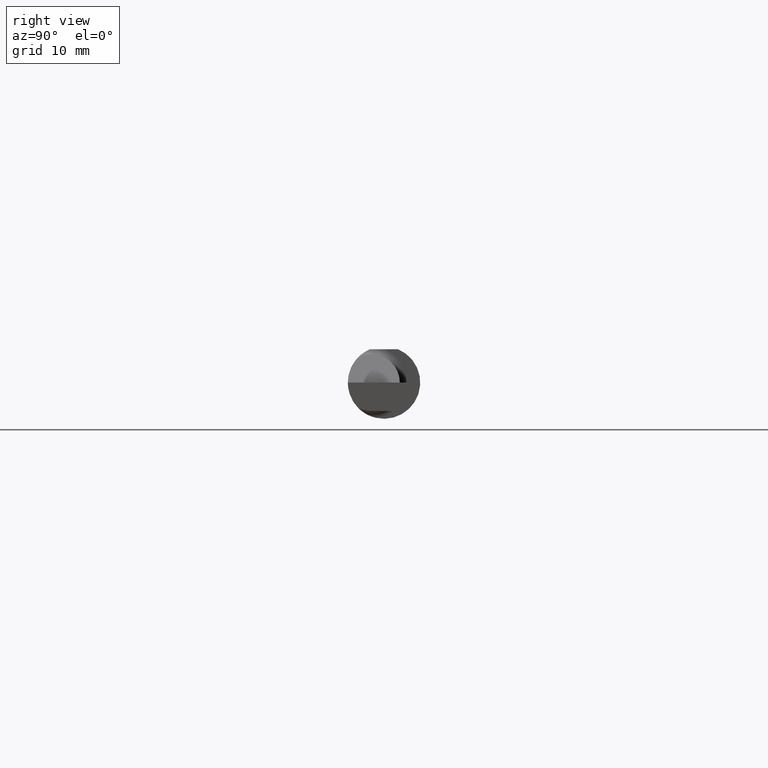
[diagram: clean part render]
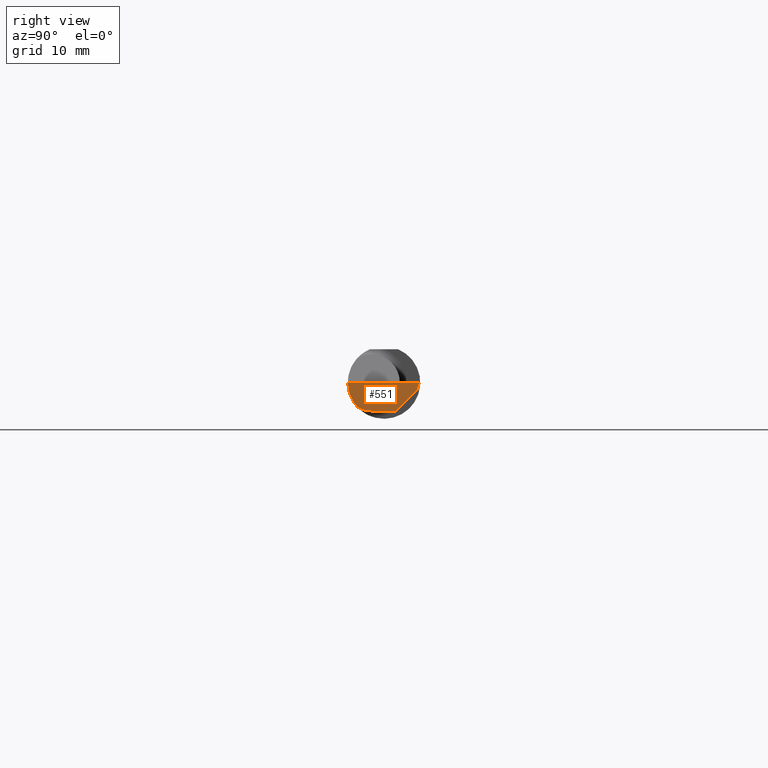
[diagram: same view with one face highlighted and labeled with its STEP entity id]
A machine part, right view. The second image highlights one B-rep face of the part: STEP entity #551.
In plain terms, the highlighted planar face has unit normal (-0.9995, 0.0174, 0.0262).
Its self-contained STEP definition (entity closure, byte-faithful):
#14 = PLANE ( 'NONE',  #281 ) ;
#39 = EDGE_CURVE ( 'NONE', #260, #57, #435, .T. ) ;
#51 = VERTEX_POINT ( 'NONE', #425 ) ;
#56 = CARTESIAN_POINT ( 'NONE',  ( 2.494835769263151537, -0.1248351010429638308, -0.03262966116142157480 ) ) ;
#57 = VERTEX_POINT ( 'NONE', #368 ) ;
#59 = CARTESIAN_POINT ( 'NONE',  ( 2.494033449660867152, -0.09015216647662482874, -0.08637192471845768493 ) ) ;
#60 = VERTEX_POINT ( 'NONE', #610 ) ;
#63 = CARTESIAN_POINT ( 'NONE',  ( 2.493072779947982820, -0.1248043149033065402, -0.09996577117162359916 ) ) ;
#72 = EDGE_CURVE ( 'NONE', #60, #57, #118, .T. ) ;
#94 = DIRECTION ( 'NONE',  ( 0.01744642479411464761, 0.9998477995484629233, -2.135106780035675284E-18 ) ) ;
#118 = LINE ( 'NONE', #656, #139 ) ;
#139 = VECTOR ( 'NONE', #726, 39.37007874015748854 ) ;
#175 = VERTEX_POINT ( 'NONE', #211 ) ;
#183 = DIRECTION ( 'NONE',  ( 0.02618093032612054533, 0.000000000000000000, 0.9996572206948034500 ) ) ;
#211 = CARTESIAN_POINT ( 'NONE',  ( 2.500000000000000444, 0.1221499999999999808, 1.947508823608312588E-17 ) ) ;
#232 = VECTOR ( 'NONE', #283, 39.37007874015748854 ) ;
#245 = EDGE_LOOP ( 'NONE', ( #777, #335, #576, #703, #404, #378, #528 ) ) ;
#260 = VERTEX_POINT ( 'NONE', #680 ) ;
#281 = AXIS2_PLACEMENT_3D ( 'NONE', #496, #732, #183 ) ;
#283 = DIRECTION ( 'NONE',  ( -0.03084274406794521375, -0.7067703747110382073, -0.7067703747110356538 ) ) ;
#335 = ORIENTED_EDGE ( 'NONE', *, *, #72, .F. ) ;
#337 = LINE ( 'NONE', #767, #232 ) ;
#341 = DIRECTION ( 'NONE',  ( -0.03042981077198583101, -0.3254173858243484818, -0.9450807116958995779 ) ) ;
#368 = CARTESIAN_POINT ( 'NONE',  ( 2.494536841675280670, -0.04385000000000003478, -0.09799999999999998990 ) ) ;
#378 = ORIENTED_EDGE ( 'NONE', *, *, #465, .F. ) ;
#379 = CARTESIAN_POINT ( 'NONE',  ( 2.495690077103728921, -0.1248499999950965084, 1.733801157256528502E-17 ) ) ;
#389 = VERTEX_POINT ( 'NONE', #408 ) ;
#402 = EDGE_CURVE ( 'NONE', #652, #175, #664, .T. ) ;
#404 = ORIENTED_EDGE ( 'NONE', *, *, #402, .F. ) ;
#408 = CARTESIAN_POINT ( 'NONE',  ( 2.495688583004118666, -0.1248499869621840785, -5.705736120969982501E-05 ) ) ;
#418 = CARTESIAN_POINT ( 'NONE',  ( 2.494536841675280670, -0.04385000000000003478, -0.09799999999999998990 ) ) ;
#425 = CARTESIAN_POINT ( 'NONE',  ( 2.499227245409318954, 0.1138861372810479888, -0.02400000000000000050 ) ) ;
#435 =( BOUNDED_CURVE ( )  B_SPLINE_CURVE ( 3, ( #778, #677, #484, #418 ),
 .UNSPECIFIED., .F., .T. ) 
 B_SPLINE_CURVE_WITH_KNOTS ( ( 4, 4 ),
 ( 0.09562308769844128642, 0.5877155292609013149 ),
 .UNSPECIFIED. ) 
 CURVE ( )  GEOMETRIC_REPRESENTATION_ITEM ( )  RATIONAL_B_SPLINE_CURVE ( ( 1.000000000000000000, 0.9799220177372778284, 0.9799220177372778284, 1.000000000000000000 ) ) 
 REPRESENTATION_ITEM ( '' )  );
#446 = CARTESIAN_POINT ( 'NONE',  ( 2.495688583004118666, -0.1248499869621840785, -5.705736120969982501E-05 ) ) ;
#465 = EDGE_CURVE ( 'NONE', #389, #652, #500, .T. ) ;
#484 = CARTESIAN_POINT ( 'NONE',  ( 2.494253479596434175, -0.06008937020638530080, -0.09800000000000001765 ) ) ;
#486 = FACE_OUTER_BOUND ( 'NONE', #245, .T. ) ;
#496 = CARTESIAN_POINT ( 'NONE',  ( 2.497382703856816377, 0.1221956850741156286, -0.09996573249755572044 ) ) ;
#500 = LINE ( 'NONE', #63, #636 ) ;
#528 = ORIENTED_EDGE ( 'NONE', *, *, #572, .F. ) ;
#551 = ADVANCED_FACE ( 'NONE', ( #486 ), #14, .F. ) ;
#572 = EDGE_CURVE ( 'NONE', #260, #389, #740, .T. ) ;
#576 = ORIENTED_EDGE ( 'NONE', *, *, #748, .F. ) ;
#595 = CARTESIAN_POINT ( 'NONE',  ( 2.499907402661638578, 0.1211597610527450630, -0.002875862722116008779 ) ) ;
#607 = CARTESIAN_POINT ( 'NONE',  ( 2.494256244271084721, -0.1126860773865890480, -0.06285177167860772629 ) ) ;
#610 = CARTESIAN_POINT ( 'NONE',  ( 2.495997960279815686, 0.03988613728104775658, -0.09799999999999996214 ) ) ;
#636 = VECTOR ( 'NONE', #678, 39.37007874015748854 ) ;
#648 = LINE ( 'NONE', #595, #675 ) ;
#652 = VERTEX_POINT ( 'NONE', #379 ) ;
#656 = CARTESIAN_POINT ( 'NONE',  ( 2.496652745773396020, 0.07741163850316090667, -0.09800000000000001765 ) ) ;
#664 = LINE ( 'NONE', #780, #722 ) ;
#675 = VECTOR ( 'NONE', #341, 39.37007874015748854 ) ;
#677 = CARTESIAN_POINT ( 'NONE',  ( 2.494082244196984099, -0.07583965973232818791, -0.09404455760388209795 ) ) ;
#678 = DIRECTION ( 'NONE',  ( 0.02617296143184116158, -0.0004568507411563382521, 0.9996573249755575929 ) ) ;
#680 = CARTESIAN_POINT ( 'NONE',  ( 2.494033449660867152, -0.09015216647662482874, -0.08637192471845768493 ) ) ;
#703 = ORIENTED_EDGE ( 'NONE', *, *, #774, .F. ) ;
#722 = VECTOR ( 'NONE', #94, 39.37007874015748854 ) ;
#726 = DIRECTION ( 'NONE',  ( -0.01744642479411464067, -0.9998477995484629233, 2.816882764651547739E-16 ) ) ;
#732 = DIRECTION ( 'NONE',  ( -0.9995051766793262571, 0.01744044634007211117, 0.02617694830739122208 ) ) ;
#740 =( BOUNDED_CURVE ( )  B_SPLINE_CURVE ( 3, ( #59, #607, #56, #446 ),
 .UNSPECIFIED., .F., .T. ) 
 B_SPLINE_CURVE_WITH_KNOTS ( ( 4, 4 ),
 ( 0.2190942387645155864, 0.9826237902196512941 ),
 .UNSPECIFIED. ) 
 CURVE ( )  GEOMETRIC_REPRESENTATION_ITEM ( )  RATIONAL_B_SPLINE_CURVE ( ( 1.000000000000000000, 0.9520057322288819623, 0.9520057322288819623, 1.000000000000000000 ) ) 
 REPRESENTATION_ITEM ( '' )  );
#748 = EDGE_CURVE ( 'NONE', #51, #60, #337, .T. ) ;
#767 = CARTESIAN_POINT ( 'NONE',  ( 2.499132853025171297, 0.1117231085775382687, -0.02616302870350971019 ) ) ;
#774 = EDGE_CURVE ( 'NONE', #175, #51, #648, .T. ) ;
#777 = ORIENTED_EDGE ( 'NONE', *, *, #39, .T. ) ;
#778 = CARTESIAN_POINT ( 'NONE',  ( 2.494033449660867152, -0.09015216647662482874, -0.08637192471845768493 ) ) ;
#780 = CARTESIAN_POINT ( 'NONE',  ( 2.494380489674781209, -0.1999019447116721915, 6.881915332554903690E-19 ) ) ;